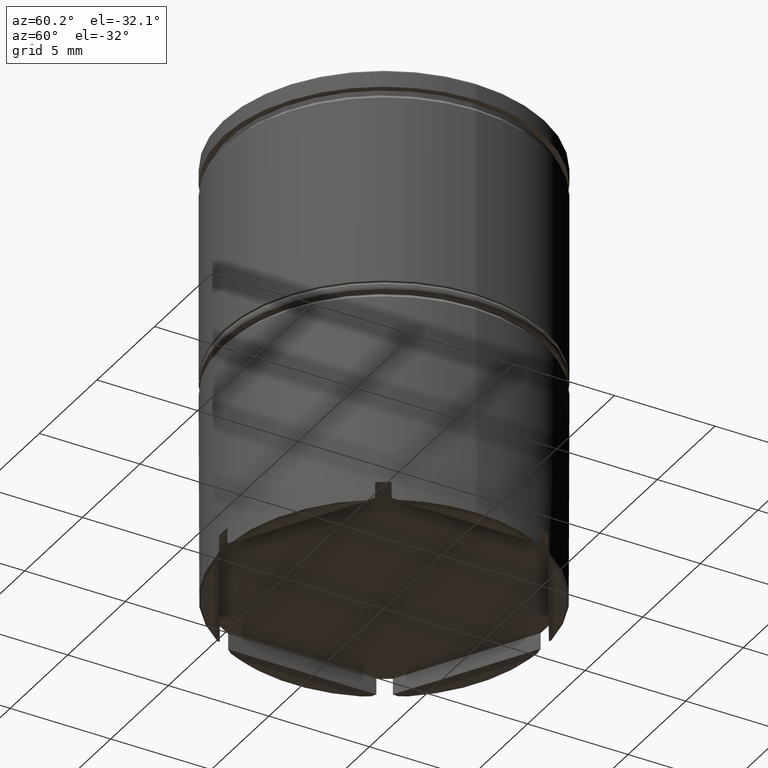
[diagram: clean part render]
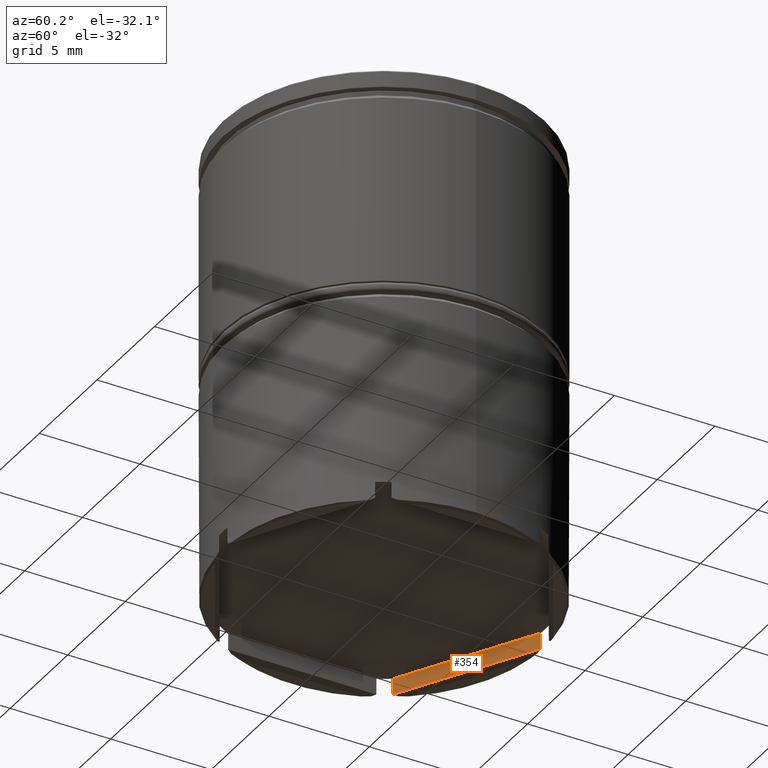
[diagram: same view with one face highlighted and labeled with its STEP entity id]
A machine part, auxiliary view. The second image highlights one B-rep face of the part: STEP entity #354.
In plain terms, the highlighted planar face has unit normal (-0.5, 0.866, 0).
Its self-contained STEP definition (entity closure, byte-faithful):
#40 = EDGE_CURVE ( 'NONE', #1327, #1491, #1435, .T. ) ;
#88 = DIRECTION ( 'NONE',  ( 0.8660254037844387076, 0.4999999999999998335, 0.000000000000000000 ) ) ;
#105 = VECTOR ( 'NONE', #88, 1000.000000000000114 ) ;
#153 = ORIENTED_EDGE ( 'NONE', *, *, #40, .T. ) ;
#215 = CARTESIAN_POINT ( 'NONE',  ( -0.3574305019310927700, 7.992011225986188627, -20.99999999999999645 ) ) ;
#216 = DIRECTION ( 'NONE',  ( 0.8660254037844387076, 0.4999999999999998335, 0.000000000000000000 ) ) ;
#291 = ORIENTED_EDGE ( 'NONE', *, *, #385, .F. ) ;
#302 = CARTESIAN_POINT ( 'NONE',  ( -0.3574305019310984322, 7.992011225986190404, -21.80000000000000782 ) ) ;
#354 = ADVANCED_FACE ( 'NONE', ( #697 ), #819, .F. ) ;
#359 = VECTOR ( 'NONE', #1516, 1000.000000000000000 ) ;
#385 = EDGE_CURVE ( 'NONE', #1327, #1541, #584, .T. ) ;
#570 = EDGE_LOOP ( 'NONE', ( #153, #1496, #1137, #291 ) ) ;
#584 = LINE ( 'NONE', #1094, #1209 ) ;
#604 = CARTESIAN_POINT ( 'NONE',  ( -6.742569498068905709, 4.305549507752851390, -21.80000000000000782 ) ) ;
#697 = FACE_OUTER_BOUND ( 'NONE', #570, .T. ) ;
#711 = LINE ( 'NONE', #1107, #105 ) ;
#734 = EDGE_CURVE ( 'NONE', #1491, #1006, #711, .T. ) ;
#773 = LINE ( 'NONE', #1398, #359 ) ;
#803 = EDGE_CURVE ( 'NONE', #1006, #1541, #773, .T. ) ;
#819 = PLANE ( 'NONE',  #1314 ) ;
#844 = DIRECTION ( 'NONE',  ( -0.4999999999999998335, 0.8660254037844387076, 0.000000000000000000 ) ) ;
#942 = DIRECTION ( 'NONE',  ( 0.000000000000000000, 0.000000000000000000, -1.000000000000000000 ) ) ;
#972 = VECTOR ( 'NONE', #942, 1000.000000000000000 ) ;
#1006 = VERTEX_POINT ( 'NONE', #302 ) ;
#1087 = DIRECTION ( 'NONE',  ( -0.8660254037844387076, -0.4999999999999998335, 0.000000000000000000 ) ) ;
#1094 = CARTESIAN_POINT ( 'NONE',  ( -7.100000000000005862, 4.099186911246346376, -20.99999999999999645 ) ) ;
#1107 = CARTESIAN_POINT ( 'NONE',  ( -0.5499999999999972689, 7.880831174438397646, -21.80000000000000782 ) ) ;
#1137 = ORIENTED_EDGE ( 'NONE', *, *, #803, .T. ) ;
#1157 = CARTESIAN_POINT ( 'NONE',  ( -6.742569498068907485, 4.305549507752846061, -20.99999999999999645 ) ) ;
#1209 = VECTOR ( 'NONE', #216, 1000.000000000000114 ) ;
#1314 = AXIS2_PLACEMENT_3D ( 'NONE', #1592, #844, #1087 ) ;
#1327 = VERTEX_POINT ( 'NONE', #1157 ) ;
#1398 = CARTESIAN_POINT ( 'NONE',  ( -0.3574305019310984322, 7.992011225986190404, 0.000000000000000000 ) ) ;
#1435 = LINE ( 'NONE', #1571, #972 ) ;
#1491 = VERTEX_POINT ( 'NONE', #604 ) ;
#1496 = ORIENTED_EDGE ( 'NONE', *, *, #734, .T. ) ;
#1516 = DIRECTION ( 'NONE',  ( -0.000000000000000000, -0.000000000000000000, 1.000000000000000000 ) ) ;
#1541 = VERTEX_POINT ( 'NONE', #215 ) ;
#1571 = CARTESIAN_POINT ( 'NONE',  ( -6.742569498068905709, 4.305549507752851390, 0.000000000000000000 ) ) ;
#1592 = CARTESIAN_POINT ( 'NONE',  ( -7.100000000000005862, 4.099186911246346376, -20.99999999999999645 ) ) ;